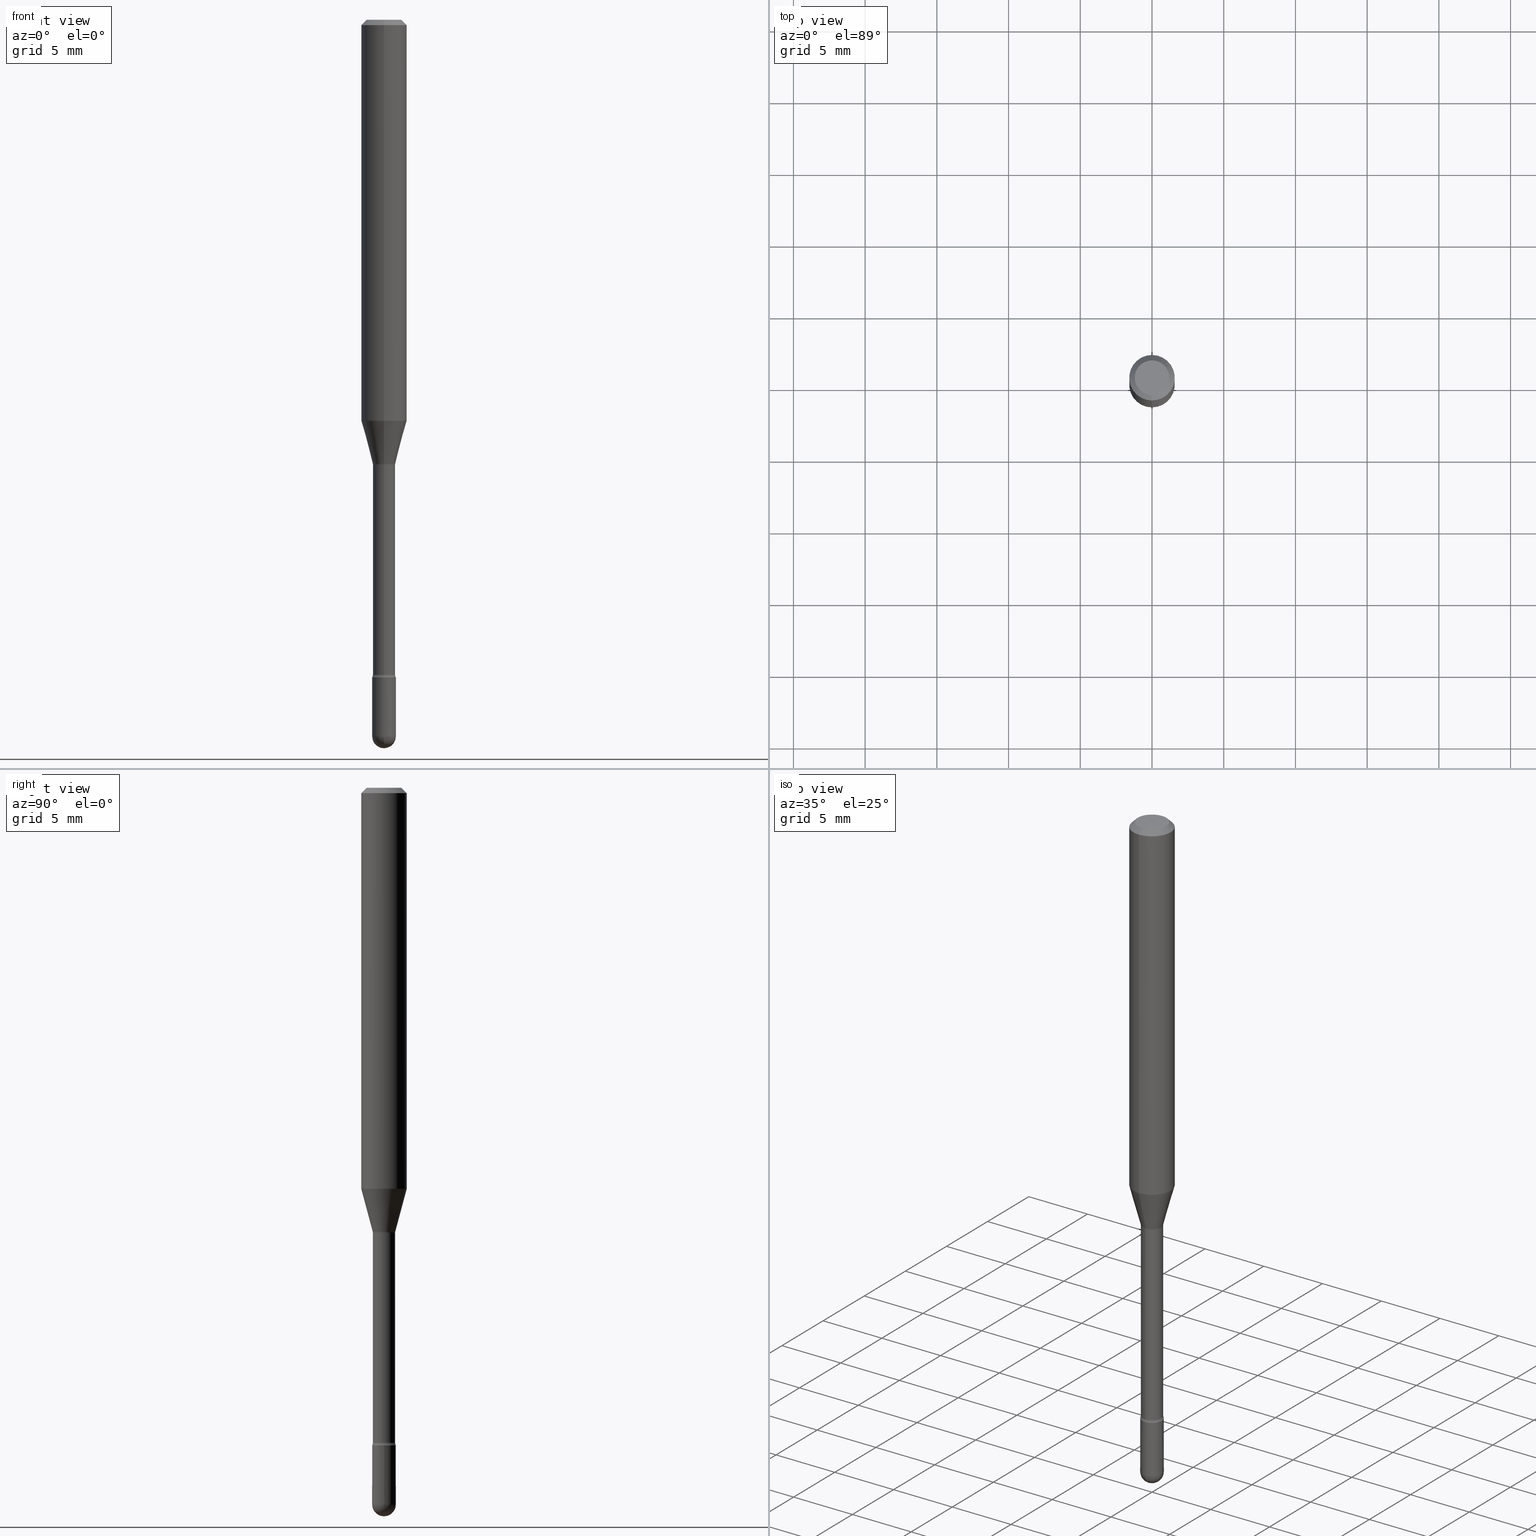
[diagram: canonical four-view strip — front | top / right | iso, engineering-drawing reading convention]
A machine part, canonical four-view strip (front | top / right | iso — engineering-drawing reading convention). The complete STEP part file that produces these views, byte-faithful:
ISO-10303-21;
HEADER;
FILE_DESCRIPTION (( 'STEP AP203' ),
    '1' );
FILE_NAME ('04580.STEP',
    '2024-04-09T22:06:48',
    ( '' ),
    ( '' ),
    'SwSTEP 2.0',
    'SolidWorks 2023',
    '' );
FILE_SCHEMA (( 'CONFIG_CONTROL_DESIGN' ));
ENDSEC;

DATA;
#1 = CARTESIAN_POINT ( 'NONE',  ( -1.169113584055446105E-44, 1.669184350826100908E-30, 4.780733988912460139E-16 ) ) ;
#2 = APPROVAL ( #258, 'UNSPECIFIED' ) ;
#3 = DATE_TIME_ROLE ( 'creation_date' ) ;
#4 = VECTOR ( 'NONE', #455, 39.37007874015748143 ) ;
#5 = VERTEX_POINT ( 'NONE', #318 ) ;
#6 = DIRECTION ( 'NONE',  ( 6.982962677686265922E-15, 1.000000000000000000, -3.483106191921935554E-15 ) ) ;
#7 = EDGE_CURVE ( 'NONE', #137, #136, #385, .T. ) ;
#8 = DIRECTION ( 'NONE',  ( -2.445516188486523811E-29, 3.491413484690726128E-15, 1.000000000000000000 ) ) ;
#9 = ORIENTED_EDGE ( 'NONE', *, *, #7, .F. ) ;
#10 = DATE_AND_TIME ( #438, #396 ) ;
#11 = AXIS2_PLACEMENT_3D ( 'NONE', #221, #391, #6 ) ;
#12 = AXIS2_PLACEMENT_3D ( 'NONE', #410, #26, #365 ) ;
#13 = EDGE_LOOP ( 'NONE', ( #50, #251 ) ) ;
#14 = DIRECTION ( 'NONE',  ( 1.000000000000000000, -6.982962677686258033E-15, 0.000000000000000000 ) ) ;
#15 = EDGE_CURVE ( 'NONE', #255, #491, #510, .T. ) ;
#16 = EDGE_LOOP ( 'NONE', ( #345, #165 ) ) ;
#17 = CC_DESIGN_DATE_AND_TIME_ASSIGNMENT ( #297, #3, ( #390 ) ) ;
#18 = CARTESIAN_POINT ( 'NONE',  ( 4.811459876169256232E-29, -6.869489534173888700E-15, -1.967500000000000027 ) ) ;
#19 = ORIENTED_EDGE ( 'NONE', *, *, #231, .T. ) ;
#20 = CIRCLE ( 'NONE', #186, 0.03250000000000000111 ) ;
#21 = AXIS2_PLACEMENT_3D ( 'NONE', #341, #85, #216 ) ;
#22 = CC_DESIGN_APPROVAL ( #189, ( #44 ) ) ;
#23 = SPHERICAL_SURFACE ( 'NONE', #495, 0.03250000000000000111 ) ;
#24 = ORIENTED_EDGE ( 'NONE', *, *, #471, .T. ) ;
#25 = EDGE_CURVE ( 'NONE', #110, #228, #20, .T. ) ;
#26 = DIRECTION ( 'NONE',  ( -2.445516188486523811E-29, 3.491413484690726128E-15, 1.000000000000000000 ) ) ;
#27 = FACE_OUTER_BOUND ( 'NONE', #81, .T. ) ;
#28 = CC_DESIGN_PERSON_AND_ORGANIZATION_ASSIGNMENT ( #138, #275, ( #44 ) ) ;
#29 = AXIS2_PLACEMENT_3D ( 'NONE', #563, #300, #90 ) ;
#30 = AXIS2_PLACEMENT_3D ( 'NONE', #93, #133, #477 ) ;
#31 = PERSON_AND_ORGANIZATION_ROLE ( 'design_owner' ) ;
#32 = CARTESIAN_POINT ( 'NONE',  ( 3.840629472727447874E-16, 0.04749999999999999362, -2.485923956665948360E-16 ) ) ;
#33 = ADVANCED_FACE ( 'NONE', ( #326 ), #418, .F. ) ;
#34 = DIRECTION ( 'NONE',  ( -2.445516188486523811E-29, 3.491413484690726128E-15, 1.000000000000000000 ) ) ;
#35 = DIRECTION ( 'NONE',  ( 7.105427357601001859E-15, 1.000000000000000000, 0.000000000000000000 ) ) ;
#36 = CARTESIAN_POINT ( 'NONE',  ( 4.440892098500897333E-16, 0.06249999999999995837, -0.01500000000000030129 ) ) ;
#37 = DIRECTION ( 'NONE',  ( -6.982962677686265922E-15, -1.000000000000000000, 3.483106191921935554E-15 ) ) ;
#38 = CIRCLE ( 'NONE', #405, 0.03106111260566397914 ) ;
#39 = AXIS2_PLACEMENT_3D ( 'NONE', #507, #295, #35 ) ;
#40 = ORIENTED_EDGE ( 'NONE', *, *, #429, .F. ) ;
#41 = CARTESIAN_POINT ( 'NONE',  ( -3.773273898774340269E-16, -0.04749999999999999362, 8.309188537902413822E-17 ) ) ;
#42 = CARTESIAN_POINT ( 'NONE',  ( 0.03250000000000000111, -6.812752962417686284E-15, -1.967500000000000027 ) ) ;
#43 = CIRCLE ( 'NONE', #530, 0.03250000000000000111 ) ;
#44 = PRODUCT_DEFINITION_FORMATION_WITH_SPECIFIED_SOURCE ( 'ANY', '', #238, .NOT_KNOWN. ) ;
#45 = ADVANCED_FACE ( 'NONE', ( #207 ), #403, .F. ) ;
#46 = EDGE_LOOP ( 'NONE', ( #232, #265, #224, #436 ) ) ;
#47 = FACE_OUTER_BOUND ( 'NONE', #148, .T. ) ;
#48 = ADVANCED_FACE ( 'NONE', ( #161 ), #505, .T. ) ;
#49 = EDGE_LOOP ( 'NONE', ( #482, #261, #532, #509 ) ) ;
#50 = ORIENTED_EDGE ( 'NONE', *, *, #25, .T. ) ;
#51 = LINE ( 'NONE', #140, #128 ) ;
#52 = ORIENTED_EDGE ( 'NONE', *, *, #231, .F. ) ;
#53 = EDGE_CURVE ( 'NONE', #314, #276, #281, .T. ) ;
#54 = CARTESIAN_POINT ( 'NONE',  ( 2.170708057747105136E-16, 0.03054999999999999036, 3.714107169339444003E-16 ) ) ;
#55 = CIRCLE ( 'NONE', #29, 0.03250000000000000111 ) ;
#56 = ORIENTED_EDGE ( 'NONE', *, *, #515, .F. ) ;
#57 = DIRECTION ( 'NONE',  ( -2.445468806185136597E-29, 3.491481338843145583E-15, 1.000000000000000000 ) ) ;
#58 = ORIENTED_EDGE ( 'NONE', *, *, #292, .T. ) ;
#59 = DIRECTION ( 'NONE',  ( 1.000000000000000000, -6.982962677686258033E-15, 0.000000000000000000 ) ) ;
#60 = ORIENTED_EDGE ( 'NONE', *, *, #349, .T. ) ;
#61 = DIRECTION ( 'NONE',  ( -2.445516188486523811E-29, 3.491413484690726128E-15, 1.000000000000000000 ) ) ;
#62 = ORIENTED_EDGE ( 'NONE', *, *, #164, .F. ) ;
#63 = CIRCLE ( 'NONE', #241, 0.03250000000000000111 ) ;
#64 = EDGE_CURVE ( 'NONE', #5, #120, #121, .T. ) ;
#65 = DIRECTION ( 'NONE',  ( -6.982962677686265133E-15, -1.000000000000000000, 4.471109645931690737E-15 ) ) ;
#66 = MANIFOLD_SOLID_BREP ( 'Body-Move/Copy2[1]', #103 ) ;
#67 = CARTESIAN_POINT ( 'NONE',  ( -0.03250000000000000111, -6.354880286270850561E-15, -1.967500000000000027 ) ) ;
#68 = VERTEX_POINT ( 'NONE', #493 ) ;
#69 = DIRECTION ( 'NONE',  ( -6.982962677686266711E-15, -1.000000000000000000, 3.491413484690726522E-15 ) ) ;
#70 = CARTESIAN_POINT ( 'NONE',  ( 4.396070230720590847E-29, -6.276179628434269096E-15, -1.797604224178627197 ) ) ;
#71 = LENGTH_MEASURE_WITH_UNIT ( LENGTH_MEASURE( 0.02539999999999999897 ), #122 );
#72 = CARTESIAN_POINT ( 'NONE',  ( -1.169113584055446105E-44, 1.669184350826100908E-30, 4.780733988912460139E-16 ) ) ;
#73 = ADVANCED_FACE ( 'NONE', ( #416 ), #376, .T. ) ;
#74 = LOCAL_TIME ( 18, 6, 48.00000000000000000, #478 ) ;
#75 =( NAMED_UNIT ( * ) SI_UNIT ( $, .STERADIAN. ) SOLID_ANGLE_UNIT ( ) );
#76 = CARTESIAN_POINT ( 'NONE',  ( 2.170708057747546159E-16, 0.03054999999999572988, -1.221974787463810719 ) ) ;
#77 = APPROVAL_ROLE ( '' ) ;
#78 = UNCERTAINTY_MEASURE_WITH_UNIT (LENGTH_MEASURE( 1.000000000000000082E-05 ), #235, 'distance_accuracy_value', 'NONE');
#79 = CARTESIAN_POINT ( 'NONE',  ( 3.316907271900976096E-16, 0.04749999999999999362, 3.181943135092092552E-17 ) ) ;
#80 = LINE ( 'NONE', #117, #522 ) ;
#81 = EDGE_LOOP ( 'NONE', ( #400, #463, #311, #40 ) ) ;
#82 = CARTESIAN_POINT ( 'NONE',  ( 3.668274282729805615E-31, -5.237120227036117935E-17, -0.01500000000000008271 ) ) ;
#83 = CARTESIAN_POINT ( 'NONE',  ( 4.395985056095465532E-29, -6.276301603345287291E-15, -1.797604224178627197 ) ) ;
#84 = CARTESIAN_POINT ( 'NONE',  ( 2.207024792658399071E-16, 0.03106111260565972559, -1.218092501787273019 ) ) ;
#85 = DIRECTION ( 'NONE',  ( 1.000000000000000000, -7.105427357601001070E-15, 4.926314677568376741E-29 ) ) ;
#86 = DIRECTION ( 'NONE',  ( -6.982962677686266711E-15, -1.000000000000000000, 3.491413484690726522E-15 ) ) ;
#87 = ADVANCED_FACE ( 'NONE', ( #370 ), #408, .T. ) ;
#88 = AXIS2_PLACEMENT_3D ( 'NONE', #373, #347, #212 ) ;
#89 = APPROVAL_PERSON_ORGANIZATION ( #541, #189, #171 ) ;
#90 = DIRECTION ( 'NONE',  ( -6.982962677686265922E-15, -1.000000000000000000, 0.000000000000000000 ) ) ;
#91 = DIRECTION ( 'NONE',  ( -2.445516188486523811E-29, 3.491413484690726128E-15, 1.000000000000000000 ) ) ;
#92 = ADVANCED_FACE ( 'NONE', ( #543 ), #167, .F. ) ;
#93 = CARTESIAN_POINT ( 'NONE',  ( 2.978864932194825835E-29, -4.252864586340746623E-15, -1.218092501787273019 ) ) ;
#94 = DIRECTION ( 'NONE',  ( -1.807323732225327378E-15, -0.2588190451025177974, 0.9659258262890690894 ) ) ;
#95 = CC_DESIGN_PERSON_AND_ORGANIZATION_ASSIGNMENT ( #399, #309, ( #44 ) ) ;
#96 = AXIS2_PLACEMENT_3D ( 'NONE', #291, #158, #553 ) ;
#97 = TOROIDAL_SURFACE ( 'NONE', #177, 0.04555000000000000021, 0.01499999999999999077 ) ;
#98 = ORIENTED_EDGE ( 'NONE', *, *, #282, .T. ) ;
#99 = ORIENTED_EDGE ( 'NONE', *, *, #349, .F. ) ;
#100 = CARTESIAN_POINT ( 'NONE',  ( 2.978864932194825835E-29, -4.252864586340746623E-15, -1.218092501787273019 ) ) ;
#101 = ORIENTED_EDGE ( 'NONE', *, *, #319, .F. ) ;
#102 = ORIENTED_EDGE ( 'NONE', *, *, #312, .T. ) ;
#103 = CLOSED_SHELL ( 'NONE', ( #48, #555, #73, #215, #87 ) ) ;
#104 = ORIENTED_EDGE ( 'NONE', *, *, #145, .T. ) ;
#105 = CIRCLE ( 'NONE', #188, 0.06250000000000000000 ) ;
#106 = CONICAL_SURFACE ( 'NONE', #523, 0.03106111260566397914, 0.2617993877991498519 ) ;
#107 = LOCAL_TIME ( 18, 6, 48.00000000000000000, #431 ) ;
#108 = VERTEX_POINT ( 'NONE', #67 ) ;
#109 = EDGE_LOOP ( 'NONE', ( #98, #102, #307, #566, #296 ) ) ;
#110 = VERTEX_POINT ( 'NONE', #192 ) ;
#111 = ADVANCED_FACE ( 'NONE', ( #320 ), #329, .F. ) ;
#112 = VERTEX_POINT ( 'NONE', #289 ) ;
#113 = AXIS2_PLACEMENT_3D ( 'NONE', #559, #174, #170 ) ;
#114 = CARTESIAN_POINT ( 'NONE',  ( 2.988359124665128376E-29, -4.266419250903232080E-15, -1.221974787463810497 ) ) ;
#115 = EDGE_CURVE ( 'NONE', #183, #557, #176, .T. ) ;
#116 = DIRECTION ( 'NONE',  ( -1.000000000000000000, 6.982962677686265922E-15, -4.883557194083112901E-29 ) ) ;
#117 = CARTESIAN_POINT ( 'NONE',  ( 0.03250000000000000111, -2.269462870248036977E-16, 1.584757452133679343E-30 ) ) ;
#118 = CC_DESIGN_PERSON_AND_ORGANIZATION_ASSIGNMENT ( #350, #526, ( #390 ) ) ;
#119 = CARTESIAN_POINT ( 'NONE',  ( 0.000000000000000000, 0.000000000000000000, 0.000000000000000000 ) ) ;
#120 = VERTEX_POINT ( 'NONE', #348 ) ;
#121 = CIRCLE ( 'NONE', #236, 0.03054999999999998342 ) ;
#122 =( LENGTH_UNIT ( ) NAMED_UNIT ( * ) SI_UNIT ( $, .METRE. ) );
#123 = DIRECTION ( 'NONE',  ( -2.445516188486523811E-29, 3.491413484690726128E-15, 1.000000000000000000 ) ) ;
#124 = DIRECTION ( 'NONE',  ( -2.445516188486523811E-29, 3.491413484690726128E-15, 1.000000000000000000 ) ) ;
#125 = PRODUCT_DEFINITION_SHAPE ( 'NONE', 'NONE',  #390 ) ;
#126 = ADVANCED_FACE ( 'NONE', ( #467 ), #211, .T. ) ;
#127 = DIRECTION ( 'NONE',  ( -2.445516188486523811E-29, 3.491413484690726128E-15, 1.000000000000000000 ) ) ;
#128 = VECTOR ( 'NONE', #94, 39.37007874015748143 ) ;
#129 = AXIS2_PLACEMENT_3D ( 'NONE', #114, #384, #298 ) ;
#130 = ORIENTED_EDGE ( 'NONE', *, *, #426, .F. ) ;
#131 = ADVANCED_FACE ( 'NONE', ( #428 ), #270, .T. ) ;
#132 = ORIENTED_EDGE ( 'NONE', *, *, #282, .F. ) ;
#133 = DIRECTION ( 'NONE',  ( -2.445516188486523811E-29, 3.491413484690726128E-15, 1.000000000000000000 ) ) ;
#134 = AXIS2_PLACEMENT_3D ( 'NONE', #325, #154, #363 ) ;
#135 = APPROVAL_STATUS ( 'not_yet_approved' ) ;
#136 = VERTEX_POINT ( 'NONE', #42 ) ;
#137 = VERTEX_POINT ( 'NONE', #383 ) ;
#138 = PERSON_AND_ORGANIZATION ( #435, #346 ) ;
#139 = VERTEX_POINT ( 'NONE', #41 ) ;
#140 = CARTESIAN_POINT ( 'NONE',  ( -2.168985900527321632E-16, -0.03106111260566822921, -1.218092501787272797 ) ) ;
#141 = AXIS2_PLACEMENT_3D ( 'NONE', #18, #230, #14 ) ;
#142 = CARTESIAN_POINT ( 'NONE',  ( -2.133295098033153535E-16, -0.03054999999999999036, 5.847360808485476276E-16 ) ) ;
#143 = AXIS2_PLACEMENT_3D ( 'NONE', #521, #127, #524 ) ;
#144 = ORIENTED_EDGE ( 'NONE', *, *, #462, .T. ) ;
#145 = EDGE_CURVE ( 'NONE', #317, #68, #485, .T. ) ;
#146 = ORIENTED_EDGE ( 'NONE', *, *, #206, .F. ) ;
#147 = CARTESIAN_POINT ( 'NONE',  ( 4.414156720218176150E-29, -6.302001339866760609E-15, -1.804999999999999938 ) ) ;
#148 = EDGE_LOOP ( 'NONE', ( #146, #279, #540, #355 ) ) ;
#149 = CARTESIAN_POINT ( 'NONE',  ( -4.364351673553916201E-16, -0.06250000000000000000, 6.962867416844164462E-16 ) ) ;
#150 = CIRCLE ( 'NONE', #129, 0.03055000000000000077 ) ;
#151 = DIRECTION ( 'NONE',  ( -6.982962677686265922E-15, -1.000000000000000000, 4.397537249142376224E-15 ) ) ;
#152 = DIRECTION ( 'NONE',  ( -6.982962677686265133E-15, -1.000000000000000000, 0.000000000000000000 ) ) ;
#153 = DIRECTION ( 'NONE',  ( -2.445516188486523811E-29, 3.491413484690726128E-15, 1.000000000000000000 ) ) ;
#154 = DIRECTION ( 'NONE',  ( -2.445468806185136597E-29, 3.491481338843145583E-15, 1.000000000000000000 ) ) ;
#155 = AXIS2_PLACEMENT_3D ( 'NONE', #83, #501, #378 ) ;
#156 = AXIS2_PLACEMENT_3D ( 'NONE', #423, #499, #548 ) ;
#157 = DATE_AND_TIME ( #379, #107 ) ;
#158 = DIRECTION ( 'NONE',  ( 2.445516188486523811E-29, -3.491413484690726128E-15, -1.000000000000000000 ) ) ;
#159 = EDGE_CURVE ( 'NONE', #136, #204, #63, .T. ) ;
#160 = FACE_OUTER_BOUND ( 'NONE', #397, .T. ) ;
#161 = FACE_OUTER_BOUND ( 'NONE', #109, .T. ) ;
#162 = CALENDAR_DATE ( 2024, 9, 4 ) ;
#163 = CARTESIAN_POINT ( 'NONE',  ( 2.023897407733888185E-45, -2.888829174053341629E-31, -8.275025514378534889E-17 ) ) ;
#164 = EDGE_CURVE ( 'NONE', #120, #5, #315, .T. ) ;
#165 = ORIENTED_EDGE ( 'NONE', *, *, #213, .F. ) ;
#166 = DIRECTION ( 'NONE',  ( -2.445516188486523811E-29, 3.491413484690726128E-15, 1.000000000000000000 ) ) ;
#167 = TOROIDAL_SURFACE ( 'NONE', #539, 0.04555000000000000021, 0.01499999999999999077 ) ;
#168 = CC_DESIGN_SECURITY_CLASSIFICATION ( #406, ( #44 ) ) ;
#169 = EDGE_LOOP ( 'NONE', ( #417, #351, #269, #316, #382 ) ) ;
#170 = DIRECTION ( 'NONE',  ( 6.982962677686265922E-15, 1.000000000000000000, 0.000000000000000000 ) ) ;
#171 = APPROVAL_ROLE ( '' ) ;
#172 = PERSON_AND_ORGANIZATION ( #435, #346 ) ;
#173 = ORIENTED_EDGE ( 'NONE', *, *, #206, .T. ) ;
#174 = DIRECTION ( 'NONE',  ( -1.000000000000000000, 6.982962677686265922E-15, -4.883557194083112901E-29 ) ) ;
#175 = APPROVAL_DATE_TIME ( #10, #189 ) ;
#176 = CIRCLE ( 'NONE', #494, 0.06250000000000000000 ) ;
#177 = AXIS2_PLACEMENT_3D ( 'NONE', #458, #34, #454 ) ;
#178 = EDGE_CURVE ( 'NONE', #68, #317, #105, .T. ) ;
#179 = EDGE_LOOP ( 'NONE', ( #266, #321, #191, #534 ) ) ;
#180 = ORIENTED_EDGE ( 'NONE', *, *, #330, .F. ) ;
#181 = DIRECTION ( 'NONE',  ( -6.982962677686265922E-15, -1.000000000000000000, 3.491413484690725733E-15 ) ) ;
#182 = PERSON_AND_ORGANIZATION_ROLE ( 'classification_officer' ) ;
#183 = VERTEX_POINT ( 'NONE', #257 ) ;
#184 = DIRECTION ( 'NONE',  ( -6.982962677686265922E-15, -1.000000000000000000, 4.370956789862821150E-15 ) ) ;
#185 = EDGE_CURVE ( 'NONE', #557, #317, #525, .T. ) ;
#186 = AXIS2_PLACEMENT_3D ( 'NONE', #443, #57, #59 ) ;
#187 = DIRECTION ( 'NONE',  ( -2.445516188486523811E-29, 3.491413484690726128E-15, 1.000000000000000000 ) ) ;
#188 = AXIS2_PLACEMENT_3D ( 'NONE', #82, #91, #37 ) ;
#189 = APPROVAL ( #277, 'UNSPECIFIED' ) ;
#190 = AXIS2_PLACEMENT_3D ( 'NONE', #448, #61, #65 ) ;
#191 = ORIENTED_EDGE ( 'NONE', *, *, #53, .T. ) ;
#192 = CARTESIAN_POINT ( 'NONE',  ( 0.03250000000000000111, -6.529070103636681305E-15, -1.804999999999999938 ) ) ;
#193 = CARTESIAN_POINT ( 'NONE',  ( 4.440892098500895360E-16, 0.06249999999999617667, -1.100760976698174742 ) ) ;
#194 = DIRECTION ( 'NONE',  ( -6.982962677686266711E-15, -1.000000000000000000, 0.000000000000000000 ) ) ;
#195 = CYLINDRICAL_SURFACE ( 'NONE', #225, 0.03054999999999999036 ) ;
#196 = CIRCLE ( 'NONE', #353, 0.04749999999999999362 ) ;
#197 = AXIS2_PLACEMENT_3D ( 'NONE', #432, #8, #305 ) ;
#198 = CARTESIAN_POINT ( 'NONE',  ( 4.414071195164171423E-29, -6.302123816611877952E-15, -1.804999999999999938 ) ) ;
#199 = DIRECTION ( 'NONE',  ( 1.000000000000000000, -6.982962677686267499E-15, 4.876176775795936353E-29 ) ) ;
#200 = APPLICATION_PROTOCOL_DEFINITION ( 'international standard', 'config_control_design', 1994, #245 ) ;
#201 = DIRECTION ( 'NONE',  ( -1.000000000000000000, 7.105427357601001070E-15, -4.926315508542082329E-29 ) ) ;
#202 = ORIENTED_EDGE ( 'NONE', *, *, #471, .F. ) ;
#203 = CARTESIAN_POINT ( 'NONE',  ( 2.269462870248477753E-16, 0.03249999999999370059, -1.804999999999999938 ) ) ;
#204 = VERTEX_POINT ( 'NONE', #430 ) ;
#205 = SPHERICAL_SURFACE ( 'NONE', #113, 0.03250000000000000111 ) ;
#206 = EDGE_CURVE ( 'NONE', #139, #360, #511, .T. ) ;
#207 = FACE_OUTER_BOUND ( 'NONE', #498, .T. ) ;
#208 = CARTESIAN_POINT ( 'NONE',  ( 3.323958445579647462E-16, 0.03106111260565972559, -1.218092501787273019 ) ) ;
#209 = AXIS2_PLACEMENT_3D ( 'NONE', #214, #533, #440 ) ;
#210 = CIRCLE ( 'NONE', #387, 0.03250000000000000111 ) ;
#211 = CYLINDRICAL_SURFACE ( 'NONE', #88, 0.03054999999999999036 ) ;
#212 = DIRECTION ( 'NONE',  ( -6.982962677686265922E-15, -1.000000000000000000, 3.491413484690724550E-15 ) ) ;
#213 = EDGE_CURVE ( 'NONE', #491, #255, #55, .T. ) ;
#214 = CARTESIAN_POINT ( 'NONE',  ( 4.811459876169256232E-29, -6.869489534173888700E-15, -1.967500000000000027 ) ) ;
#215 = ADVANCED_FACE ( 'NONE', ( #160 ), #205, .T. ) ;
#216 = DIRECTION ( 'NONE',  ( 7.105427357600997914E-15, 1.000000000000000000, 0.000000000000000000 ) ) ;
#217 = APPLICATION_CONTEXT ( 'configuration controlled 3d designs of mechanical parts and assemblies' ) ;
#218 = LOCAL_TIME ( 18, 6, 48.00000000000000000, #407 ) ;
#219 = APPROVAL_DATE_TIME ( #157, #2 ) ;
#220 = ORIENTED_EDGE ( 'NONE', *, *, #164, .T. ) ;
#221 = CARTESIAN_POINT ( 'NONE',  ( 3.668274282729805615E-31, -5.237120227036117935E-17, -0.01500000000000008271 ) ) ;
#222 = ORIENTED_EDGE ( 'NONE', *, *, #306, .T. ) ;
#223 = EDGE_CURVE ( 'NONE', #112, #204, #449, .T. ) ;
#224 = ORIENTED_EDGE ( 'NONE', *, *, #426, .T. ) ;
#225 = AXIS2_PLACEMENT_3D ( 'NONE', #72, #123, #502 ) ;
#226 = APPROVAL_PERSON_ORGANIZATION ( #172, #243, #77 ) ;
#227 = CC_DESIGN_PERSON_AND_ORGANIZATION_ASSIGNMENT ( #392, #182, ( #406 ) ) ;
#228 = VERTEX_POINT ( 'NONE', #229 ) ;
#229 = CARTESIAN_POINT ( 'NONE',  ( -0.03250000000000000111, -6.354880286270850561E-15, -1.804999999999999938 ) ) ;
#230 = DIRECTION ( 'NONE',  ( -2.445468806185136597E-29, 3.491481338843145583E-15, 1.000000000000000000 ) ) ;
#231 = EDGE_CURVE ( 'NONE', #314, #183, #51, .T. ) ;
#232 = ORIENTED_EDGE ( 'NONE', *, *, #185, .F. ) ;
#233 = DIRECTION ( 'NONE',  ( -2.445516188486523811E-29, 3.491413484690726128E-15, 1.000000000000000000 ) ) ;
#234 = ORIENTED_EDGE ( 'NONE', *, *, #178, .F. ) ;
#235 =( CONVERSION_BASED_UNIT ( 'INCH', #71 ) LENGTH_UNIT ( ) NAMED_UNIT ( #516 ) );
#236 = AXIS2_PLACEMENT_3D ( 'NONE', #70, #371, #152 ) ;
#237 = MECHANICAL_CONTEXT ( 'NONE', #217, 'mechanical' ) ;
#238 = PRODUCT ( '04580', '04580', '', ( #237 ) ) ;
#239 = DIRECTION ( 'NONE',  ( -2.445468806185136597E-29, 3.491481338843145583E-15, 1.000000000000000000 ) ) ;
#240 = LINE ( 'NONE', #84, #395 ) ;
#241 = AXIS2_PLACEMENT_3D ( 'NONE', #472, #424, #389 ) ;
#242 = DIRECTION ( 'NONE',  ( 1.000000000000000000, -6.982962677686258033E-15, 0.000000000000000000 ) ) ;
#243 = APPROVAL ( #135, 'UNSPECIFIED' ) ;
#244 = DIRECTION ( 'NONE',  ( -2.445516188486523811E-29, 3.491413484690726128E-15, 1.000000000000000000 ) ) ;
#245 = APPLICATION_CONTEXT ( 'configuration controlled 3d designs of mechanical parts and assemblies' ) ;
#246 = CARTESIAN_POINT ( 'NONE',  ( 4.414071195164171423E-29, -6.302123816611877952E-15, -1.804999999999999938 ) ) ;
#247 = EDGE_CURVE ( 'NONE', #557, #183, #293, .T. ) ;
#248 = CARTESIAN_POINT ( 'NONE',  ( 4.440892098500625669E-16, 0.06250000000000000000, 2.598600560980756803E-16 ) ) ;
#249 = APPROVAL_ROLE ( '' ) ;
#250 = LINE ( 'NONE', #288, #4 ) ;
#251 = ORIENTED_EDGE ( 'NONE', *, *, #536, .T. ) ;
#252 = CARTESIAN_POINT ( 'NONE',  ( 2.978864932194825835E-29, -4.252864586340746623E-15, -1.218092501787273019 ) ) ;
#253 = DIRECTION ( 'NONE',  ( 6.982962677686265922E-15, 1.000000000000000000, -3.491413484690726128E-15 ) ) ;
#254 = AXIS2_PLACEMENT_3D ( 'NONE', #445, #233, #184 ) ;
#255 = VERTEX_POINT ( 'NONE', #361 ) ;
#256 = CYLINDRICAL_SURFACE ( 'NONE', #273, 0.06250000000000000000 ) ;
#257 = CARTESIAN_POINT ( 'NONE',  ( -4.364351673553647002E-16, -0.06250000000000384415, -1.100760976698174076 ) ) ;
#258 = APPROVAL_STATUS ( 'not_yet_approved' ) ;
#259 = MANIFOLD_SOLID_BREP ( 'Body-Move/Copy2[2]', #484 ) ;
#260 = AXIS2_PLACEMENT_3D ( 'NONE', #79, #339, #253 ) ;
#261 = ORIENTED_EDGE ( 'NONE', *, *, #413, .T. ) ;
#262 = CIRCLE ( 'NONE', #21, 0.01499999999999999424 ) ;
#263 = AXIS2_PLACEMENT_3D ( 'NONE', #512, #545, #327 ) ;
#264 = DIRECTION ( 'NONE',  ( -6.982962677686263555E-15, -1.000000000000000000, 0.000000000000000000 ) ) ;
#265 = ORIENTED_EDGE ( 'NONE', *, *, #247, .T. ) ;
#266 = ORIENTED_EDGE ( 'NONE', *, *, #292, .F. ) ;
#267 = DIRECTION ( 'NONE',  ( -2.445516188486523811E-29, 3.491413484690726128E-15, 1.000000000000000000 ) ) ;
#268 = DIRECTION ( 'NONE',  ( -6.982962677686265922E-15, -1.000000000000000000, 0.000000000000000000 ) ) ;
#269 = ORIENTED_EDGE ( 'NONE', *, *, #7, .T. ) ;
#270 = CONICAL_SURFACE ( 'NONE', #343, 0.03106111260566397914, 0.2617993877991498519 ) ;
#271 = CIRCLE ( 'NONE', #560, 0.03250000000000000111 ) ;
#272 = ADVANCED_FACE ( 'NONE', ( #47 ), #386, .T. ) ;
#273 = AXIS2_PLACEMENT_3D ( 'NONE', #1, #166, #181 ) ;
#274 = DIRECTION ( 'NONE',  ( -2.445516188486523811E-29, 3.491413484690726128E-15, 1.000000000000000000 ) ) ;
#275 = PERSON_AND_ORGANIZATION_ROLE ( 'design_supplier' ) ;
#276 = VERTEX_POINT ( 'NONE', #402 ) ;
#277 = APPROVAL_STATUS ( 'not_yet_approved' ) ;
#278 = EDGE_LOOP ( 'NONE', ( #439, #441, #180, #132 ) ) ;
#279 = ORIENTED_EDGE ( 'NONE', *, *, #319, .T. ) ;
#280 = CARTESIAN_POINT ( 'NONE',  ( 4.811459876169256232E-29, -6.869489534173888700E-15, -1.967500000000000027 ) ) ;
#281 = CIRCLE ( 'NONE', #299, 0.01499999999999999424 ) ;
#282 = EDGE_CURVE ( 'NONE', #204, #108, #43, .T. ) ;
#283 = DIRECTION ( 'NONE',  ( -2.445516188486523251E-29, 3.491413484690726128E-15, 1.000000000000000000 ) ) ;
#284 = ORIENTED_EDGE ( 'NONE', *, *, #15, .T. ) ;
#285 = DIRECTION ( 'NONE',  ( -2.445468806185136877E-29, 3.491481338843145188E-15, 1.000000000000000000 ) ) ;
#286 = APPROVAL_DATE_TIME ( #503, #243 ) ;
#287 = DIRECTION ( 'NONE',  ( 1.000000000000000000, -6.982962677686258033E-15, 0.000000000000000000 ) ) ;
#288 = CARTESIAN_POINT ( 'NONE',  ( 4.364351673553919652E-16, 0.06249999999999995143, -0.01500000000000030129 ) ) ;
#289 = CARTESIAN_POINT ( 'NONE',  ( 4.892327257590189630E-29, -6.980972626637676656E-15, -2.000000000000000000 ) ) ;
#290 = PERSON_AND_ORGANIZATION ( #435, #346 ) ;
#291 = CARTESIAN_POINT ( 'NONE',  ( 3.668274282729805615E-31, -5.237120227036117935E-17, -0.01500000000000008271 ) ) ;
#292 = EDGE_CURVE ( 'NONE', #420, #357, #262, .T. ) ;
#293 = CIRCLE ( 'NONE', #254, 0.06250000000000000000 ) ;
#294 = EDGE_CURVE ( 'NONE', #5, #357, #356, .T. ) ;
#295 = DIRECTION ( 'NONE',  ( 1.000000000000000000, -7.105427357601001070E-15, 4.926314677568376741E-29 ) ) ;
#296 = ORIENTED_EDGE ( 'NONE', *, *, #159, .T. ) ;
#297 = DATE_AND_TIME ( #162, #475 ) ;
#298 = DIRECTION ( 'NONE',  ( -6.982962677686265133E-15, -1.000000000000000000, 4.471109645931690737E-15 ) ) ;
#299 = AXIS2_PLACEMENT_3D ( 'NONE', #561, #116, #194 ) ;
#300 = DIRECTION ( 'NONE',  ( -2.445516188486523811E-29, 3.491413484690726128E-15, 1.000000000000000000 ) ) ;
#301 = ADVANCED_FACE ( 'NONE', ( #461 ), #335, .T. ) ;
#302 = ADVANCED_BREP_SHAPE_REPRESENTATION ( '04580', ( #66, #259, #263 ), #344 ) ;
#303 = EDGE_LOOP ( 'NONE', ( #220, #481, #554, #56 ) ) ;
#304 = DIRECTION ( 'NONE',  ( -6.982962677686265922E-15, -1.000000000000000000, 4.370956789862821150E-15 ) ) ;
#305 = DIRECTION ( 'NONE',  ( -6.982962677686265922E-15, -1.000000000000000000, 3.491413484690725733E-15 ) ) ;
#306 = EDGE_CURVE ( 'NONE', #314, #420, #38, .T. ) ;
#307 = ORIENTED_EDGE ( 'NONE', *, *, #25, .F. ) ;
#308 = AXIS2_PLACEMENT_3D ( 'NONE', #119, #496, #199 ) ;
#309 = PERSON_AND_ORGANIZATION_ROLE ( 'creator' ) ;
#310 = EDGE_LOOP ( 'NONE', ( #222, #444, #331, #52 ) ) ;
#311 = ORIENTED_EDGE ( 'NONE', *, *, #515, .T. ) ;
#312 = EDGE_CURVE ( 'NONE', #108, #228, #328, .T. ) ;
#313 = SECURITY_CLASSIFICATION_LEVEL ( 'unclassified' ) ;
#314 = VERTEX_POINT ( 'NONE', #334 ) ;
#315 = CIRCLE ( 'NONE', #468, 0.03054999999999998342 ) ;
#316 = ORIENTED_EDGE ( 'NONE', *, *, #380, .T. ) ;
#317 = VERTEX_POINT ( 'NONE', #36 ) ;
#318 = CARTESIAN_POINT ( 'NONE',  ( 2.239985974484157911E-16, 0.03054999999999370719, -1.797604224178627197 ) ) ;
#319 = EDGE_CURVE ( 'NONE', #139, #68, #412, .T. ) ;
#320 = FACE_OUTER_BOUND ( 'NONE', #16, .T. ) ;
#321 = ORIENTED_EDGE ( 'NONE', *, *, #306, .F. ) ;
#322 = VECTOR ( 'NONE', #558, 39.37007874015748143 ) ;
#323 = DIRECTION ( 'NONE',  ( -2.445516188486523811E-29, 3.491413484690726128E-15, 1.000000000000000000 ) ) ;
#324 = APPROVAL_PERSON_ORGANIZATION ( #290, #2, #249 ) ;
#325 = CARTESIAN_POINT ( 'NONE',  ( 0.000000000000000000, 0.000000000000000000, 0.000000000000000000 ) ) ;
#326 = FACE_OUTER_BOUND ( 'NONE', #527, .T. ) ;
#327 = DIRECTION ( 'NONE',  ( 1.000000000000000000, 0.000000000000000000, 0.000000000000000000 ) ) ;
#328 = LINE ( 'NONE', #452, #322 ) ;
#329 = PLANE ( 'NONE',  #433 ) ;
#330 = EDGE_CURVE ( 'NONE', #108, #137, #549, .T. ) ;
#331 = ORIENTED_EDGE ( 'NONE', *, *, #115, .F. ) ;
#332 = DIRECTION ( 'NONE',  ( -7.105427357601000281E-15, -1.000000000000000000, 0.000000000000000000 ) ) ;
#333 = PERSON_AND_ORGANIZATION ( #435, #346 ) ;
#334 = CARTESIAN_POINT ( 'NONE',  ( -2.168985900527321632E-16, -0.03106111260566822921, -1.218092501787272797 ) ) ;
#335 = CONICAL_SURFACE ( 'NONE', #96, 0.06250000000000000000, 0.7853981633974483900 ) ;
#336 = CC_DESIGN_APPROVAL ( #243, ( #406 ) ) ;
#337 = EDGE_LOOP ( 'NONE', ( #101, #99, #401, #104 ) ) ;
#338 = DIRECTION ( 'NONE',  ( -6.982962677686265922E-15, -1.000000000000000000, 4.397537249142376224E-15 ) ) ;
#339 = DIRECTION ( 'NONE',  ( 2.445516188486523251E-29, -3.491413484690726128E-15, -1.000000000000000000 ) ) ;
#340 = FACE_OUTER_BOUND ( 'NONE', #49, .T. ) ;
#341 = CARTESIAN_POINT ( 'NONE',  ( 3.236522161387554650E-16, 0.04554999999999573279, -1.221974787463810941 ) ) ;
#342 = DIRECTION ( 'NONE',  ( -6.982962677686265922E-15, -1.000000000000000000, 4.397537249142376224E-15 ) ) ;
#343 = AXIS2_PLACEMENT_3D ( 'NONE', #252, #124, #338 ) ;
#344 =( GEOMETRIC_REPRESENTATION_CONTEXT ( 3 ) GLOBAL_UNCERTAINTY_ASSIGNED_CONTEXT ( ( #78 ) ) GLOBAL_UNIT_ASSIGNED_CONTEXT ( ( #235, #556, #75 ) ) REPRESENTATION_CONTEXT ( 'NONE', 'WORKASPACE' ) );
#345 = ORIENTED_EDGE ( 'NONE', *, *, #15, .F. ) ;
#346 = ORGANIZATION ( 'UNSPECIFIED', 'UNSPECIFIED', '' ) ;
#347 = DIRECTION ( 'NONE',  ( -2.445516188486523811E-29, 3.491413484690726128E-15, 1.000000000000000000 ) ) ;
#348 = CARTESIAN_POINT ( 'NONE',  ( -2.133295098032713499E-16, -0.03055000000000625618, -1.797604224178627197 ) ) ;
#349 = EDGE_CURVE ( 'NONE', #360, #139, #196, .T. ) ;
#350 = PERSON_AND_ORGANIZATION ( #435, #346 ) ;
#351 = ORIENTED_EDGE ( 'NONE', *, *, #330, .T. ) ;
#352 = EDGE_LOOP ( 'NONE', ( #447, #24, #19, #535 ) ) ;
#353 = AXIS2_PLACEMENT_3D ( 'NONE', #374, #153, #69 ) ;
#354 = AXIS2_PLACEMENT_3D ( 'NONE', #427, #565, #264 ) ;
#355 = ORIENTED_EDGE ( 'NONE', *, *, #388, .F. ) ;
#356 = LINE ( 'NONE', #54, #366 ) ;
#357 = VERTEX_POINT ( 'NONE', #76 ) ;
#358 = CARTESIAN_POINT ( 'NONE',  ( 2.309263891220769910E-16, 0.03249999999999374917, -1.804999999999999938 ) ) ;
#359 = DATE_AND_TIME ( #486, #74 ) ;
#360 = VERTEX_POINT ( 'NONE', #32 ) ;
#361 = CARTESIAN_POINT ( 'NONE',  ( -2.269462870247597680E-16, -0.03250000000000634326, -1.804999999999999938 ) ) ;
#362 = CIRCLE ( 'NONE', #30, 0.03106111260566397914 ) ;
#363 = DIRECTION ( 'NONE',  ( 1.000000000000000000, -6.982962677686267499E-15, 4.876176775795936353E-29 ) ) ;
#364 = EDGE_CURVE ( 'NONE', #420, #557, #240, .T. ) ;
#365 = DIRECTION ( 'NONE',  ( -6.982962677686265922E-15, -1.000000000000000000, 3.491413484690726128E-15 ) ) ;
#366 = VECTOR ( 'NONE', #274, 39.37007874015748143 ) ;
#367 = CARTESIAN_POINT ( 'NONE',  ( 2.978864932194825835E-29, -4.252864586340746623E-15, -1.218092501787273019 ) ) ;
#368 = VECTOR ( 'NONE', #323, 39.37007874015748143 ) ;
#369 = ADVANCED_FACE ( 'NONE', ( #27 ), #195, .T. ) ;
#370 = FACE_OUTER_BOUND ( 'NONE', #169, .T. ) ;
#371 = DIRECTION ( 'NONE',  ( -2.445516188486523811E-29, 3.491413484690726128E-15, 1.000000000000000000 ) ) ;
#372 = CARTESIAN_POINT ( 'NONE',  ( 4.811459876169256232E-29, -6.869489534173888700E-15, -1.967500000000000027 ) ) ;
#373 = CARTESIAN_POINT ( 'NONE',  ( -1.169113584055446105E-44, 1.669184350826100908E-30, 4.780733988912460139E-16 ) ) ;
#374 = CARTESIAN_POINT ( 'NONE',  ( 2.023897407733888185E-45, -2.888829174053341629E-31, -8.275025514378534889E-17 ) ) ;
#375 = VECTOR ( 'NONE', #422, 39.37007874015748143 ) ;
#376 = PLANE ( 'NONE',  #474 ) ;
#377 = DIRECTION ( 'NONE',  ( -2.445516188486523811E-29, 3.491413484690726128E-15, 1.000000000000000000 ) ) ;
#378 = DIRECTION ( 'NONE',  ( -6.982962677686265922E-15, -1.000000000000000000, 3.491413484690726128E-15 ) ) ;
#379 = CALENDAR_DATE ( 2024, 9, 4 ) ;
#380 = EDGE_CURVE ( 'NONE', #136, #110, #80, .T. ) ;
#381 = EDGE_LOOP ( 'NONE', ( #544, #466, #234, #130 ) ) ;
#382 = ORIENTED_EDGE ( 'NONE', *, *, #536, .F. ) ;
#383 = CARTESIAN_POINT ( 'NONE',  ( -2.309263891219843985E-16, -0.03250000000000686368, -1.967500000000000027 ) ) ;
#384 = DIRECTION ( 'NONE',  ( -2.445516188486523811E-29, 3.491413484690726128E-15, 1.000000000000000000 ) ) ;
#385 = CIRCLE ( 'NONE', #141, 0.03250000000000000111 ) ;
#386 = CONICAL_SURFACE ( 'NONE', #11, 0.06250000000000000000, 0.7853981633974483900 ) ;
#387 = AXIS2_PLACEMENT_3D ( 'NONE', #246, #506, #287 ) ;
#388 = EDGE_CURVE ( 'NONE', #360, #317, #250, .T. ) ;
#389 = DIRECTION ( 'NONE',  ( 1.000000000000000000, -6.982962677686258033E-15, 0.000000000000000000 ) ) ;
#390 = PRODUCT_DEFINITION ( 'UNKNOWN', '', #44, #469 ) ;
#391 = DIRECTION ( 'NONE',  ( 2.445516188486523811E-29, -3.491413484690726128E-15, -1.000000000000000000 ) ) ;
#392 = PERSON_AND_ORGANIZATION ( #435, #346 ) ;
#393 = ORIENTED_EDGE ( 'NONE', *, *, #159, .F. ) ;
#394 = ORIENTED_EDGE ( 'NONE', *, *, #429, .T. ) ;
#395 = VECTOR ( 'NONE', #514, 39.37007874015748854 ) ;
#396 = LOCAL_TIME ( 18, 6, 48.00000000000000000, #528 ) ;
#397 = EDGE_LOOP ( 'NONE', ( #487, #492, #393, #9 ) ) ;
#398 = DIRECTION ( 'NONE',  ( -2.445516188486523811E-29, 3.491413484690726128E-15, 1.000000000000000000 ) ) ;
#399 = PERSON_AND_ORGANIZATION ( #435, #346 ) ;
#400 = ORIENTED_EDGE ( 'NONE', *, *, #294, .F. ) ;
#401 = ORIENTED_EDGE ( 'NONE', *, *, #388, .T. ) ;
#402 = CARTESIAN_POINT ( 'NONE',  ( -2.133295098032855247E-16, -0.03055000000000426819, -1.221974787463810497 ) ) ;
#403 = TOROIDAL_SURFACE ( 'NONE', #155, 0.04555000000000006960, 0.01500000000000008792 ) ;
#404 = EDGE_CURVE ( 'NONE', #112, #137, #271, .T. ) ;
#405 = AXIS2_PLACEMENT_3D ( 'NONE', #367, #460, #151 ) ;
#406 = SECURITY_CLASSIFICATION ( '', '', #313 ) ;
#407 = COORDINATED_UNIVERSAL_TIME_OFFSET ( 5, 0, .BEHIND. ) ;
#408 = CYLINDRICAL_SURFACE ( 'NONE', #134, 0.03250000000000000111 ) ;
#409 = FACE_OUTER_BOUND ( 'NONE', #546, .T. ) ;
#410 = CARTESIAN_POINT ( 'NONE',  ( 4.395985056095465532E-29, -6.276301603345287291E-15, -1.797604224178627197 ) ) ;
#411 = DIRECTION ( 'NONE',  ( 6.982962677686265922E-15, 1.000000000000000000, 0.000000000000000000 ) ) ;
#412 = LINE ( 'NONE', #562, #442 ) ;
#413 = EDGE_CURVE ( 'NONE', #5, #491, #531, .T. ) ;
#414 = CC_DESIGN_APPROVAL ( #2, ( #390 ) ) ;
#415 = CARTESIAN_POINT ( 'NONE',  ( 4.811459876169256232E-29, -6.869489534173888700E-15, -1.967500000000000027 ) ) ;
#416 = FACE_OUTER_BOUND ( 'NONE', #13, .T. ) ;
#417 = ORIENTED_EDGE ( 'NONE', *, *, #312, .F. ) ;
#418 = PLANE ( 'NONE',  #260 ) ;
#419 = FACE_OUTER_BOUND ( 'NONE', #278, .T. ) ;
#420 = VERTEX_POINT ( 'NONE', #208 ) ;
#421 = DIRECTION ( 'NONE',  ( -4.851104656540964275E-15, -0.7071067811865500152, -0.7071067811865450192 ) ) ;
#422 = DIRECTION ( 'NONE',  ( -2.445516188486523811E-29, 3.491413484690726128E-15, 1.000000000000000000 ) ) ;
#423 = CARTESIAN_POINT ( 'NONE',  ( 4.811459876169256232E-29, -6.869489534173888700E-15, -1.967500000000000027 ) ) ;
#424 = DIRECTION ( 'NONE',  ( -2.445468806185136597E-29, 3.491481338843145583E-15, 1.000000000000000000 ) ) ;
#425 = ADVANCED_FACE ( 'NONE', ( #340 ), #459, .F. ) ;
#426 = EDGE_CURVE ( 'NONE', #183, #68, #465, .T. ) ;
#427 = CARTESIAN_POINT ( 'NONE',  ( -3.180739499685659028E-16, -0.04555000000000634236, -1.797604224178626975 ) ) ;
#428 = FACE_OUTER_BOUND ( 'NONE', #310, .T. ) ;
#429 = EDGE_CURVE ( 'NONE', #357, #276, #150, .T. ) ;
#430 = CARTESIAN_POINT ( 'NONE',  ( 2.269462870248517196E-16, 0.03249999999999313161, -1.967500000000000027 ) ) ;
#431 = COORDINATED_UNIVERSAL_TIME_OFFSET ( 5, 0, .BEHIND. ) ;
#432 = CARTESIAN_POINT ( 'NONE',  ( -1.169113584055446105E-44, 1.669184350826100908E-30, 4.780733988912460139E-16 ) ) ;
#433 = AXIS2_PLACEMENT_3D ( 'NONE', #203, #283, #453 ) ;
#434 = VECTOR ( 'NONE', #187, 39.37007874015748143 ) ;
#435 = PERSON ( 'UNSPECIFIED', 'UNSPECIFIED', 'UNSPECIFIED', ('UNSPECIFIED'), ('UNSPECIFIED'), ('UNSPECIFIED') ) ;
#436 = ORIENTED_EDGE ( 'NONE', *, *, #145, .F. ) ;
#437 = FACE_OUTER_BOUND ( 'NONE', #352, .T. ) ;
#438 = CALENDAR_DATE ( 2024, 9, 4 ) ;
#439 = ORIENTED_EDGE ( 'NONE', *, *, #223, .F. ) ;
#440 = DIRECTION ( 'NONE',  ( 6.982962677686265922E-15, 1.000000000000000000, 0.000000000000000000 ) ) ;
#441 = ORIENTED_EDGE ( 'NONE', *, *, #404, .T. ) ;
#442 = VECTOR ( 'NONE', #421, 39.37007874015748143 ) ;
#443 = CARTESIAN_POINT ( 'NONE',  ( 4.414071195164171423E-29, -6.302123816611877952E-15, -1.804999999999999938 ) ) ;
#444 = ORIENTED_EDGE ( 'NONE', *, *, #364, .T. ) ;
#445 = CARTESIAN_POINT ( 'NONE',  ( 2.691928788169622258E-29, -3.843211717465340284E-15, -1.100760976698174298 ) ) ;
#446 = ADVANCED_FACE ( 'NONE', ( #473 ), #518, .T. ) ;
#447 = ORIENTED_EDGE ( 'NONE', *, *, #364, .F. ) ;
#448 = CARTESIAN_POINT ( 'NONE',  ( 2.988359124665128376E-29, -4.266419250903232080E-15, -1.221974787463810497 ) ) ;
#449 = CIRCLE ( 'NONE', #209, 0.03250000000000000111 ) ;
#450 = DIRECTION ( 'NONE',  ( 1.000000000000000000, -6.982962677686265922E-15, 4.876176775795935793E-29 ) ) ;
#451 = APPLICATION_PROTOCOL_DEFINITION ( 'international standard', 'config_control_design', 1994, #217 ) ;
#452 = CARTESIAN_POINT ( 'NONE',  ( -0.03250000000000000111, 2.309263891220325683E-16, -1.598653904332844407E-30 ) ) ;
#453 = DIRECTION ( 'NONE',  ( -6.982962677686265922E-15, -1.000000000000000000, 3.491413484690726128E-15 ) ) ;
#454 = DIRECTION ( 'NONE',  ( -6.982962677686265922E-15, -1.000000000000000000, 3.491413484690726522E-15 ) ) ;
#455 = DIRECTION ( 'NONE',  ( 4.937700262164548042E-15, 0.7071067811865451302, -0.7071067811865499042 ) ) ;
#456 = CARTESIAN_POINT ( 'NONE',  ( 2.691928788169622258E-29, -3.843211717465340284E-15, -1.100760976698174298 ) ) ;
#457 = AXIS2_PLACEMENT_3D ( 'NONE', #163, #517, #86 ) ;
#458 = CARTESIAN_POINT ( 'NONE',  ( 2.988301224687461483E-29, -4.266502166966713670E-15, -1.221974787463810719 ) ) ;
#459 = TOROIDAL_SURFACE ( 'NONE', #12, 0.04555000000000006960, 0.01500000000000008792 ) ;
#460 = DIRECTION ( 'NONE',  ( -2.445516188486523811E-29, 3.491413484690726128E-15, 1.000000000000000000 ) ) ;
#461 = FACE_OUTER_BOUND ( 'NONE', #337, .T. ) ;
#462 = EDGE_CURVE ( 'NONE', #120, #255, #550, .T. ) ;
#463 = ORIENTED_EDGE ( 'NONE', *, *, #64, .T. ) ;
#464 = DIRECTION ( 'NONE',  ( -6.982962677686265133E-15, -1.000000000000000000, 0.000000000000000000 ) ) ;
#465 = LINE ( 'NONE', #149, #368 ) ;
#466 = ORIENTED_EDGE ( 'NONE', *, *, #185, .T. ) ;
#467 = FACE_OUTER_BOUND ( 'NONE', #303, .T. ) ;
#468 = AXIS2_PLACEMENT_3D ( 'NONE', #470, #377, #464 ) ;
#469 = DESIGN_CONTEXT ( 'detailed design', #245, 'design' ) ;
#470 = CARTESIAN_POINT ( 'NONE',  ( 4.396070230720590847E-29, -6.276179628434269096E-15, -1.797604224178627197 ) ) ;
#471 = EDGE_CURVE ( 'NONE', #420, #314, #362, .T. ) ;
#472 = CARTESIAN_POINT ( 'NONE',  ( 4.811459876169256232E-29, -6.869489534173888700E-15, -1.967500000000000027 ) ) ;
#473 = FACE_OUTER_BOUND ( 'NONE', #46, .T. ) ;
#474 = AXIS2_PLACEMENT_3D ( 'NONE', #198, #547, #450 ) ;
#475 = LOCAL_TIME ( 18, 6, 48.00000000000000000, #564 ) ;
#476 = ORIENTED_EDGE ( 'NONE', *, *, #413, .F. ) ;
#477 = DIRECTION ( 'NONE',  ( -6.982962677686265922E-15, -1.000000000000000000, 4.397537249142376224E-15 ) ) ;
#478 = COORDINATED_UNIVERSAL_TIME_OFFSET ( 5, 0, .BEHIND. ) ;
#479 = ADVANCED_FACE ( 'NONE', ( #437 ), #106, .T. ) ;
#480 = ORIENTED_EDGE ( 'NONE', *, *, #53, .F. ) ;
#481 = ORIENTED_EDGE ( 'NONE', *, *, #294, .T. ) ;
#482 = ORIENTED_EDGE ( 'NONE', *, *, #64, .F. ) ;
#483 = PRODUCT_RELATED_PRODUCT_CATEGORY ( 'detail', '', ( #238 ) ) ;
#484 = CLOSED_SHELL ( 'NONE', ( #529, #126, #425, #272, #488, #131, #479, #446, #301, #33, #111, #45, #369, #92 ) ) ;
#485 = CIRCLE ( 'NONE', #143, 0.06250000000000000000 ) ;
#486 = CALENDAR_DATE ( 2024, 9, 4 ) ;
#487 = ORIENTED_EDGE ( 'NONE', *, *, #404, .F. ) ;
#488 = ADVANCED_FACE ( 'NONE', ( #520 ), #256, .T. ) ;
#489 = DATE_TIME_ROLE ( 'classification_date' ) ;
#490 = CC_DESIGN_PERSON_AND_ORGANIZATION_ASSIGNMENT ( #333, #31, ( #238 ) ) ;
#491 = VERTEX_POINT ( 'NONE', #358 ) ;
#492 = ORIENTED_EDGE ( 'NONE', *, *, #223, .T. ) ;
#493 = CARTESIAN_POINT ( 'NONE',  ( -4.364351673553912750E-16, -0.06250000000000005551, -0.01499999999999986587 ) ) ;
#494 = AXIS2_PLACEMENT_3D ( 'NONE', #456, #244, #304 ) ;
#495 = AXIS2_PLACEMENT_3D ( 'NONE', #372, #497, #411 ) ;
#496 = DIRECTION ( 'NONE',  ( -2.445468806185136597E-29, 3.491481338843145583E-15, 1.000000000000000000 ) ) ;
#497 = DIRECTION ( 'NONE',  ( -1.000000000000000000, 6.982962677686265922E-15, -4.883557194083112901E-29 ) ) ;
#498 = EDGE_LOOP ( 'NONE', ( #476, #62, #144, #284 ) ) ;
#499 = DIRECTION ( 'NONE',  ( -2.445468806185136597E-29, 3.491481338843145583E-15, 1.000000000000000000 ) ) ;
#500 = DIRECTION ( 'NONE',  ( -2.445516188486523811E-29, 3.491413484690726128E-15, 1.000000000000000000 ) ) ;
#501 = DIRECTION ( 'NONE',  ( -2.445516188486523811E-29, 3.491413484690726128E-15, 1.000000000000000000 ) ) ;
#502 = DIRECTION ( 'NONE',  ( -6.982962677686265922E-15, -1.000000000000000000, 3.491413484690724550E-15 ) ) ;
#503 = DATE_AND_TIME ( #508, #218 ) ;
#504 = CARTESIAN_POINT ( 'NONE',  ( 2.988301224687461483E-29, -4.266502166966713670E-15, -1.221974787463810719 ) ) ;
#505 = CYLINDRICAL_SURFACE ( 'NONE', #308, 0.03250000000000000111 ) ;
#506 = DIRECTION ( 'NONE',  ( -2.445468806185136597E-29, 3.491481338843145583E-15, 1.000000000000000000 ) ) ;
#507 = CARTESIAN_POINT ( 'NONE',  ( 3.236522161387700589E-16, 0.04554999999999379684, -1.797604224178627419 ) ) ;
#508 = CALENDAR_DATE ( 2024, 9, 4 ) ;
#509 = ORIENTED_EDGE ( 'NONE', *, *, #462, .F. ) ;
#510 = CIRCLE ( 'NONE', #538, 0.03250000000000000111 ) ;
#511 = CIRCLE ( 'NONE', #457, 0.04749999999999999362 ) ;
#512 = CARTESIAN_POINT ( 'NONE',  ( 0.000000000000000000, 0.000000000000000000, 0.000000000000000000 ) ) ;
#513 = CIRCLE ( 'NONE', #190, 0.03055000000000000077 ) ;
#514 = DIRECTION ( 'NONE',  ( 1.839019923739597160E-15, 0.2588190451025245142, 0.9659258262890670910 ) ) ;
#515 = EDGE_CURVE ( 'NONE', #120, #276, #537, .T. ) ;
#516 = DIMENSIONAL_EXPONENTS ( 1.000000000000000000, 0.000000000000000000, 0.000000000000000000, 0.000000000000000000, 0.000000000000000000, 0.000000000000000000, 0.000000000000000000 ) ;
#517 = DIRECTION ( 'NONE',  ( -2.445516188486523811E-29, 3.491413484690726128E-15, 1.000000000000000000 ) ) ;
#518 = CYLINDRICAL_SURFACE ( 'NONE', #197, 0.06250000000000000000 ) ;
#519 = EDGE_CURVE ( 'NONE', #276, #357, #513, .T. ) ;
#520 = FACE_OUTER_BOUND ( 'NONE', #381, .T. ) ;
#521 = CARTESIAN_POINT ( 'NONE',  ( 3.668274282729805615E-31, -5.237120227036117935E-17, -0.01500000000000008271 ) ) ;
#522 = VECTOR ( 'NONE', #285, 39.37007874015748143 ) ;
#523 = AXIS2_PLACEMENT_3D ( 'NONE', #100, #267, #342 ) ;
#524 = DIRECTION ( 'NONE',  ( -6.982962677686265922E-15, -1.000000000000000000, 3.483106191921935554E-15 ) ) ;
#525 = LINE ( 'NONE', #248, #375 ) ;
#526 = PERSON_AND_ORGANIZATION_ROLE ( 'creator' ) ;
#527 = EDGE_LOOP ( 'NONE', ( #60, #173 ) ) ;
#528 = COORDINATED_UNIVERSAL_TIME_OFFSET ( 5, 0, .BEHIND. ) ;
#529 = ADVANCED_FACE ( 'NONE', ( #409 ), #97, .F. ) ;
#530 = AXIS2_PLACEMENT_3D ( 'NONE', #280, #239, #242 ) ;
#531 = CIRCLE ( 'NONE', #39, 0.01500000000000008792 ) ;
#532 = ORIENTED_EDGE ( 'NONE', *, *, #213, .T. ) ;
#533 = DIRECTION ( 'NONE',  ( 1.000000000000000000, -6.982962677686265922E-15, 4.883557194083112340E-29 ) ) ;
#534 = ORIENTED_EDGE ( 'NONE', *, *, #519, .T. ) ;
#535 = ORIENTED_EDGE ( 'NONE', *, *, #247, .F. ) ;
#536 = EDGE_CURVE ( 'NONE', #228, #110, #210, .T. ) ;
#537 = LINE ( 'NONE', #142, #434 ) ;
#538 = AXIS2_PLACEMENT_3D ( 'NONE', #147, #398, #268 ) ;
#539 = AXIS2_PLACEMENT_3D ( 'NONE', #504, #500, #552 ) ;
#540 = ORIENTED_EDGE ( 'NONE', *, *, #178, .T. ) ;
#541 = PERSON_AND_ORGANIZATION ( #435, #346 ) ;
#542 = CC_DESIGN_DATE_AND_TIME_ASSIGNMENT ( #359, #489, ( #406 ) ) ;
#543 = FACE_OUTER_BOUND ( 'NONE', #179, .T. ) ;
#544 = ORIENTED_EDGE ( 'NONE', *, *, #115, .T. ) ;
#545 = DIRECTION ( 'NONE',  ( 0.000000000000000000, 0.000000000000000000, 1.000000000000000000 ) ) ;
#546 = EDGE_LOOP ( 'NONE', ( #202, #58, #394, #480 ) ) ;
#547 = DIRECTION ( 'NONE',  ( -2.438088387897960049E-29, 3.491481338843145188E-15, 1.000000000000000000 ) ) ;
#548 = DIRECTION ( 'NONE',  ( 1.000000000000000000, -6.982962677686258033E-15, 0.000000000000000000 ) ) ;
#549 = CIRCLE ( 'NONE', #156, 0.03250000000000000111 ) ;
#550 = CIRCLE ( 'NONE', #354, 0.01500000000000008792 ) ;
#551 = SHAPE_DEFINITION_REPRESENTATION ( #125, #302 ) ;
#552 = DIRECTION ( 'NONE',  ( -6.982962677686265922E-15, -1.000000000000000000, 3.491413484690726522E-15 ) ) ;
#553 = DIRECTION ( 'NONE',  ( 6.982962677686265922E-15, 1.000000000000000000, -3.483106191921935554E-15 ) ) ;
#554 = ORIENTED_EDGE ( 'NONE', *, *, #519, .F. ) ;
#555 = ADVANCED_FACE ( 'NONE', ( #419 ), #23, .T. ) ;
#556 =( NAMED_UNIT ( * ) PLANE_ANGLE_UNIT ( ) SI_UNIT ( $, .RADIAN. ) );
#557 = VERTEX_POINT ( 'NONE', #193 ) ;
#558 = DIRECTION ( 'NONE',  ( -2.445468806185136877E-29, 3.491481338843145188E-15, 1.000000000000000000 ) ) ;
#559 = CARTESIAN_POINT ( 'NONE',  ( 4.811459876169256232E-29, -6.869489534173888700E-15, -1.967500000000000027 ) ) ;
#560 = AXIS2_PLACEMENT_3D ( 'NONE', #415, #201, #332 ) ;
#561 = CARTESIAN_POINT ( 'NONE',  ( -3.180739499685795106E-16, -0.04555000000000426763, -1.221974787463810497 ) ) ;
#562 = CARTESIAN_POINT ( 'NONE',  ( -4.287811248607203282E-16, -0.06250000000000005551, -0.01499999999999986587 ) ) ;
#563 = CARTESIAN_POINT ( 'NONE',  ( 4.414156720218176150E-29, -6.302001339866760609E-15, -1.804999999999999938 ) ) ;
#564 = COORDINATED_UNIVERSAL_TIME_OFFSET ( 5, 0, .BEHIND. ) ;
#565 = DIRECTION ( 'NONE',  ( -1.000000000000000000, 6.982962677686265922E-15, -4.883557194083112901E-29 ) ) ;
#566 = ORIENTED_EDGE ( 'NONE', *, *, #380, .F. ) ;
ENDSEC;
END-ISO-10303-21;
